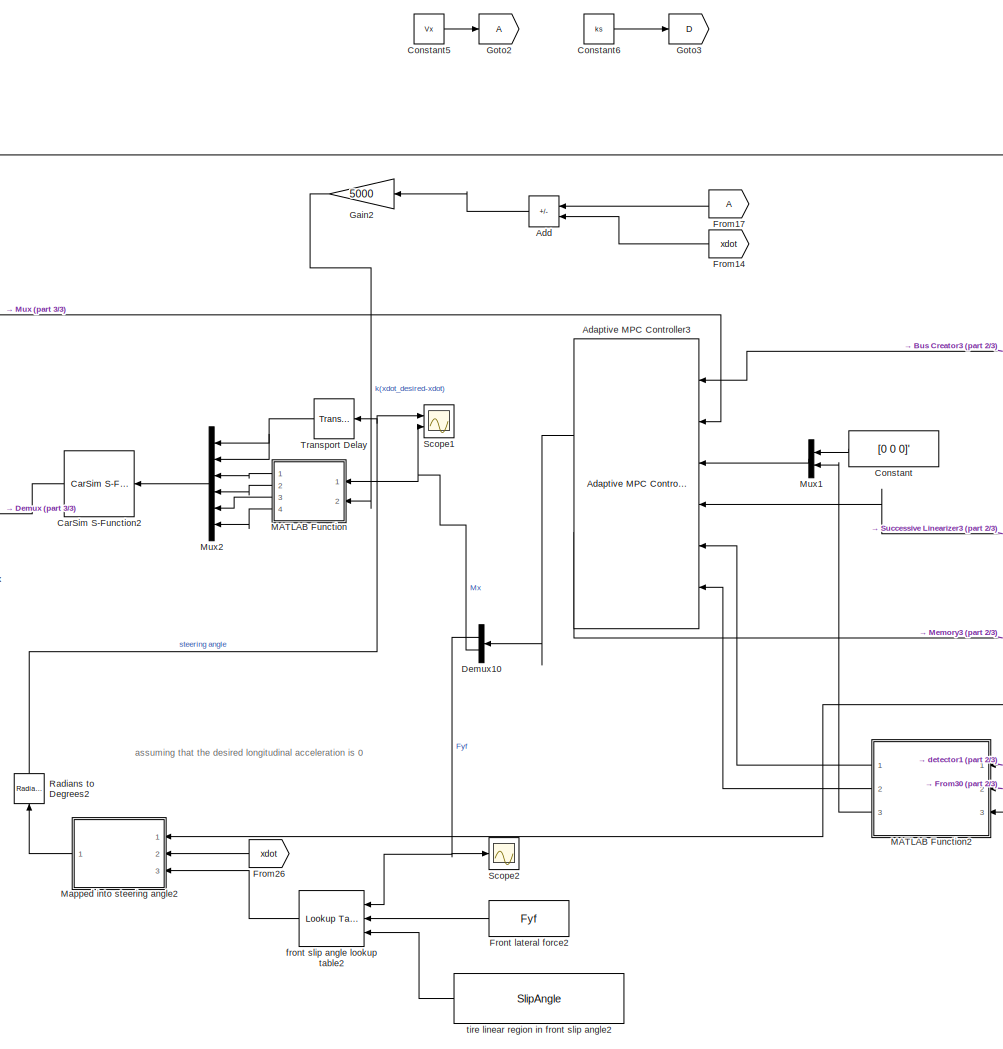
[diagram: root canvas - part 1/3, center side, full height]
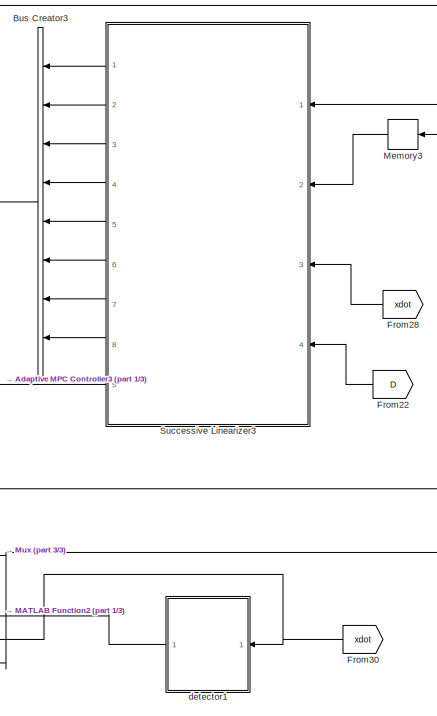
[diagram: root canvas - part 2/3, middle right region]
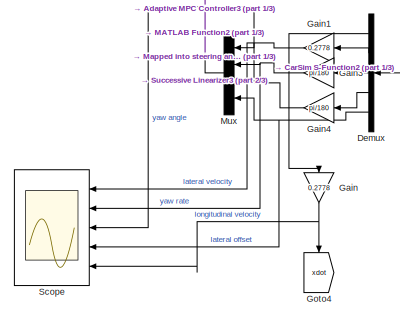
[diagram: root canvas - part 3/3, middle left region]
MODEL slx_ea054cab4434
KIND model
CONFIG AbsTol = auto
CONFIG EnableMultiTasking = off
CONFIG FixedStep = auto
CONFIG MaxStep = auto
CONFIG MinStep = auto
CONFIG RelTol = 1e-2
CONFIG SampleTimeConstraint = Unconstrained
CONFIG SolverName = VariableStepAuto
CONFIG StartTime = 0.0
CONFIG StopTime = 20
BLOCK [Reference] Adaptive MPC Controller3  REF=mpclib/Adaptive MPC Controller  (lib defined in mdl_ae329e0e0455)
  Ports = [6, 2]
  SCDEnableBlockLinearizationSpecification = on
  SourceBlock = mpclib/Adaptive MPC Controller
  SourceProductBaseCode = MP
  SourceType = Adaptive MPC
BLOCK [Sum] Add
  IconShape = rectangular
  Inputs = +-
  Ports = [2, 1]
BLOCK [BusCreator] Bus Creator3
  DisplayOption = bar
  InheritFromInputs = on
  Inputs = 8
  Ports = [8, 1]
BLOCK [Reference] CarSim S-Function2  REF=Solver_SF/CarSim S-Function2
  AttributesFormatString = Vehicle Code: %<VehicleCode>
  Ports = [1, 1]
  Priority = 1
  SourceBlock = Solver_SF/CarSim S-Function2
  SourceType = Vehicle math model library
BLOCK [Constant] Constant
  Value = [0 0 0]'
BLOCK [Constant] Constant5
  Value = Vx
BLOCK [Constant] Constant6
  Value = ks
BLOCK [Demux] Demux
  Outputs = 5
  Ports = [1, 5]
BLOCK [Demux] Demux10
  Outputs = 2
  Ports = [1, 2]
BLOCK [From] From14
  GotoTag = xdot
BLOCK [From] From17
BLOCK [From] From22
  GotoTag = D
BLOCK [From] From26
  GotoTag = xdot
BLOCK [From] From28
  GotoTag = xdot
BLOCK [From] From30
  GotoTag = xdot
BLOCK [Constant] Front lateral force2
  Value = Fyf
BLOCK [Gain] Gain
  Gain = 0.2778
  NameLocation = left
BLOCK [Gain] Gain1
  Gain = 0.2778
  NameLocation = top
BLOCK [Gain] Gain2
  Gain = 5000
BLOCK [Gain] Gain3
  Gain = pi/180
BLOCK [Gain] Gain4
  Gain = pi/180
BLOCK [Goto] Goto2
BLOCK [Goto] Goto3
  GotoTag = D
BLOCK [Goto] Goto4
  GotoTag = xdot
  NameLocation = left
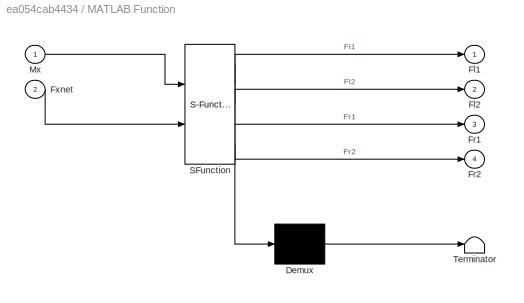
BLOCK [SubSystem] MATLAB Function
  ErrorFcn = Stateflow.Translate.translate
  PermitHierarchicalResolution = ExplicitOnly
  Ports = [2, 4]
  RequestExecContextInheritance = off
  SFBlockType = MATLAB Function
  TreatAsAtomicUnit = on
BLOCK [Demux] MATLAB Function/ Demux 
  Outputs = 1
  Ports = [1, 1]
BLOCK [S-Function] MATLAB Function/ SFunction 
  EnableBusSupport = on
  FunctionName = sf_sfun
  PortCounts = [2 5]
  Ports = [2, 5]
  SFcnIsStateOwnerBlock = off
  SFunctionDeploymentMode = off
  Tag = Stateflow S-Function 16
BLOCK [Terminator] MATLAB Function/ Terminator 
BLOCK [Outport] MATLAB Function/Fl1
BLOCK [Outport] MATLAB Function/Fl2
  Port = 2
BLOCK [Outport] MATLAB Function/Fr1
  Port = 3
BLOCK [Outport] MATLAB Function/Fr2
  Port = 4
BLOCK [Inport] MATLAB Function/Fxnet
  Port = 2
BLOCK [Inport] MATLAB Function/Mx
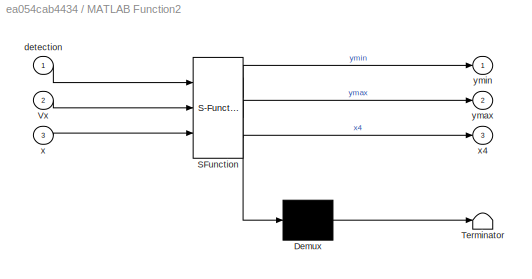
BLOCK [SubSystem] MATLAB Function2
  ErrorFcn = Stateflow.Translate.translate
  PermitHierarchicalResolution = ExplicitOnly
  Ports = [3, 3]
  RequestExecContextInheritance = off
  SFBlockType = MATLAB Function
  TreatAsAtomicUnit = on
BLOCK [Demux] MATLAB Function2/ Demux 
  Outputs = 1
  Ports = [1, 1]
BLOCK [S-Function] MATLAB Function2/ SFunction 
  EnableBusSupport = on
  FunctionName = sf_sfun
  PortCounts = [3 4]
  Ports = [3, 4]
  SFcnIsStateOwnerBlock = off
  SFunctionDeploymentMode = off
  Tag = Stateflow S-Function 2
BLOCK [Terminator] MATLAB Function2/ Terminator 
BLOCK [Inport] MATLAB Function2/Vx
  Port = 2
BLOCK [Inport] MATLAB Function2/detection
BLOCK [Inport] MATLAB Function2/x
  Port = 3
BLOCK [Outport] MATLAB Function2/x4
  Port = 3
BLOCK [Outport] MATLAB Function2/ymax
  Port = 2
BLOCK [Outport] MATLAB Function2/ymin
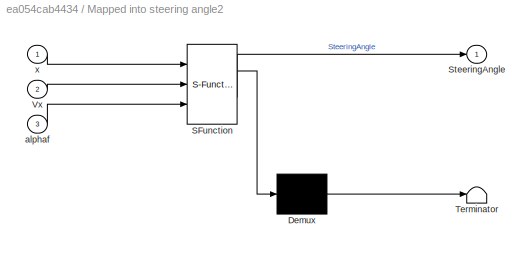
BLOCK [SubSystem] Mapped into steering angle2
  ErrorFcn = Stateflow.Translate.translate
  PermitHierarchicalResolution = ExplicitOnly
  Ports = [3, 1]
  RequestExecContextInheritance = off
  SFBlockType = MATLAB Function
  TreatAsAtomicUnit = on
BLOCK [Demux] Mapped into steering angle2/ Demux 
  Outputs = 1
  Ports = [1, 1]
BLOCK [S-Function] Mapped into steering angle2/ SFunction 
  EnableBusSupport = on
  FunctionName = sf_sfun
  PortCounts = [3 2]
  Ports = [3, 2]
  SFcnIsStateOwnerBlock = off
  SFunctionDeploymentMode = off
  Tag = Stateflow S-Function 13
BLOCK [Terminator] Mapped into steering angle2/ Terminator 
BLOCK [Outport] Mapped into steering angle2/SteeringAngle
BLOCK [Inport] Mapped into steering angle2/Vx
  Port = 2
BLOCK [Inport] Mapped into steering angle2/alphaf
  Port = 3
BLOCK [Inport] Mapped into steering angle2/x
BLOCK [Memory] Memory3
BLOCK [Mux] Mux
  DisplayOption = bar
  Ports = [4, 1]
BLOCK [Mux] Mux1
  DisplayOption = bar
  Inputs = 2
  Ports = [2, 1]
BLOCK [Mux] Mux2
  DisplayOption = bar
  Inputs = 6
  Ports = [6, 1]
BLOCK [Reference] Radians to Degrees2  REF=simulink_extras/Transformations/Radians
to Degrees
  NameLocation = left
  Ports = [1, 1]
  SourceBlock = simulink_extras/Transformations/Radians\nto Degrees
  SourceProductBaseCode = SL
  SourceType = RadiansToDegrees
BLOCK [Scope] Scope
  Floating = off
  NumInputPorts = 5
  Ports = [5]
  ScopeSpecificationString = Simulink.scopes.TimeScopeBlockCfg('CurrentConfiguration', extmgr.ConfigurationSet(extmgr.Configuration('Core','General UI',true),extmgr.Configuration('Core','Source UI',true),extmgr.Configuration('Sources','WiredSimulink',true,'DataLoggingVariableName','ScopeData1'),extmgr.Configuration('Visuals','Time Domain',true,'SerializedDisplays',{struct('MinYLimReal','-0.50924','MaxYLimReal','0.47855','YLab...<+4826ch>
BLOCK [Scope] Scope1
  Floating = off
  NumInputPorts = 2
  Ports = [2]
  ScopeSpecificationString = Simulink.scopes.TimeScopeBlockCfg('CurrentConfiguration', extmgr.ConfigurationSet(extmgr.Configuration('Core','General UI',true),extmgr.Configuration('Core','Source UI',true),extmgr.Configuration('Sources','WiredSimulink',true,'DataLoggingVariableName','ScopeData2'),extmgr.Configuration('Visuals','Time Domain',true,'SerializedDisplays',{struct('MinYLimReal','-9.78875','MaxYLimReal','9.28435','YLab...<+2051ch>
BLOCK [Scope] Scope2
  Floating = off
  NumInputPorts = 1
  Ports = [1]
  ScopeSpecificationString = Simulink.scopes.TimeScopeBlockCfg('CurrentConfiguration', extmgr.ConfigurationSet(extmgr.Configuration('Core','General UI',true),extmgr.Configuration('Core','Source UI',true),extmgr.Configuration('Sources','WiredSimulink',true,'DataLoggingVariableName','ScopeData1'),extmgr.Configuration('Visuals','Time Domain',true,'SerializedDisplays',{struct('MinYLimReal','-11062.39515','MaxYLimReal','12073.7571...<+1425ch>
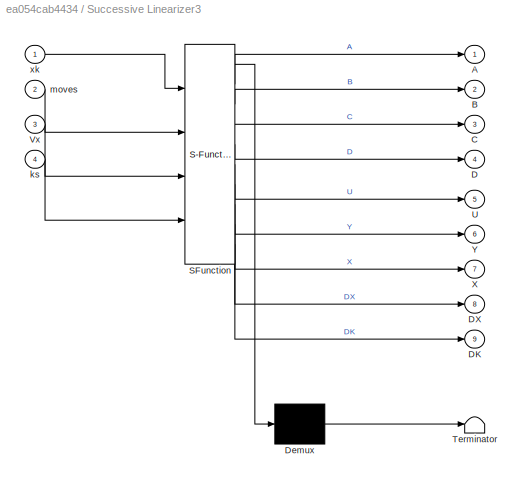
BLOCK [SubSystem] Successive Linearizer3
  ErrorFcn = Stateflow.Translate.translate
  PermitHierarchicalResolution = ExplicitOnly
  Ports = [4, 9]
  RequestExecContextInheritance = off
  SFBlockType = MATLAB Function
  TreatAsAtomicUnit = on
BLOCK [Demux] Successive Linearizer3/ Demux 
  Outputs = 1
  Ports = [1, 1]
BLOCK [S-Function] Successive Linearizer3/ SFunction 
  EnableBusSupport = on
  FunctionName = sf_sfun
  Parameters = PredictionHorizon,Ts
  PortCounts = [4 10]
  Ports = [4, 10]
  SFcnIsStateOwnerBlock = off
  SFunctionDeploymentMode = off
  Tag = Stateflow S-Function 14
BLOCK [Terminator] Successive Linearizer3/ Terminator 
BLOCK [Outport] Successive Linearizer3/A
BLOCK [Outport] Successive Linearizer3/B
  Port = 2
BLOCK [Outport] Successive Linearizer3/C
  Port = 3
BLOCK [Outport] Successive Linearizer3/D
  Port = 4
BLOCK [Outport] Successive Linearizer3/DK
  Port = 9
BLOCK [Outport] Successive Linearizer3/DX
  Port = 8
BLOCK [Outport] Successive Linearizer3/U
  Port = 5
BLOCK [Inport] Successive Linearizer3/Vx
  Port = 3
BLOCK [Outport] Successive Linearizer3/X
  Port = 7
BLOCK [Outport] Successive Linearizer3/Y
  Port = 6
BLOCK [Inport] Successive Linearizer3/ks
  Port = 4
BLOCK [Inport] Successive Linearizer3/moves
  Port = 2
BLOCK [Inport] Successive Linearizer3/xk
BLOCK [TransportDelay] Transport Delay
  DelayTime = Ts
  Ports = [1, 1]
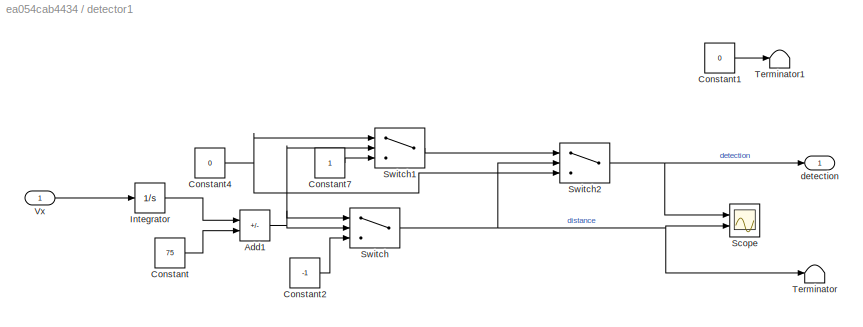
BLOCK [SubSystem] detector1
  Ports = [1, 1]
  RequestExecContextInheritance = off
BLOCK [Sum] detector1/Add1
  IconShape = rectangular
  Inputs = -+
  Ports = [2, 1]
BLOCK [Constant] detector1/Constant
  Value = 75
BLOCK [Constant] detector1/Constant1
  Value = 0
BLOCK [Constant] detector1/Constant2
  Value = -1
BLOCK [Constant] detector1/Constant4
  Value = 0
BLOCK [Constant] detector1/Constant7
BLOCK [Integrator] detector1/Integrator
  Ports = [1, 1]
BLOCK [Scope] detector1/Scope
  Floating = off
  NumInputPorts = 2
  Ports = [2]
  ScopeSpecificationString = Simulink.scopes.TimeScopeBlockCfg('CurrentConfiguration', extmgr.ConfigurationSet(extmgr.Configuration('Core','General UI',true),extmgr.Configuration('Core','Source UI',true),extmgr.Configuration('Sources','WiredSimulink',true),extmgr.Configuration('Visuals','Time Domain',true,'SerializedDisplays',{struct('MinYLimReal','-0.125','MaxYLimReal','1.125','YLabelReal','','MinYLimMag','0.00000','MaxYLimM...<+1985ch>
BLOCK [Switch] detector1/Switch
  Criteria = u2 > Threshold
  InputSameDT = off
  SaturateOnIntegerOverflow = off
BLOCK [Switch] detector1/Switch1
  Criteria = u2 > Threshold
  InputSameDT = off
  SaturateOnIntegerOverflow = off
  Threshold = 50
BLOCK [Switch] detector1/Switch2
  Criteria = u2 > Threshold
  InputSameDT = off
  SaturateOnIntegerOverflow = off
BLOCK [Terminator] detector1/Terminator
BLOCK [Terminator] detector1/Terminator1
BLOCK [Inport] detector1/Vx
BLOCK [Outport] detector1/detection
BLOCK [Reference] front slip angle lookup table2  REF=simulink/Lookup
Tables/Lookup
Table
Dynamic
  Ports = [3, 1]
  SourceBlock = simulink/Lookup\nTables/Lookup\nTable\nDynamic
  SourceProductBaseCode = SL
  SourceType = Lookup Table Dynamic
BLOCK [Constant] tire linear region in front slip angle2
  Value = SlipAngle
ANNOTATION (root): assuming that the desired longitudinal acceleration is 0
LINE Adaptive MPC Controller3:1 -> Demux10:1
LINE Adaptive MPC Controller3:2 -> Memory3:1
LINE Add:1 -> Gain2:1
LINE Bus Creator3:1 -> Adaptive MPC Controller3:1
LINE CarSim S-Function2:1 -> Demux:1
LINE Constant5:1 -> Goto2:1
LINE Constant6:1 -> Goto3:1
LINE Constant:1 -> Mux1:1
NET Demux10:1 -> Scope2:1, front slip angle lookup table2:1
NET Demux10:2 -> MATLAB Function:1, Scope1:2
LINE Demux:1 -> Gain:1
LINE Demux:2 -> Gain1:1
LINE Demux:3 -> Gain3:1
LINE Demux:4 -> Gain4:1
NET Demux:5 -> Mux:4, Scope:4
LINE From14:1 -> Add:2
LINE From17:1 -> Add:1
LINE From22:1 -> Successive Linearizer3:4
LINE From26:1 -> Mapped into steering angle2:2
LINE From28:1 -> Successive Linearizer3:3
NET From30:1 -> MATLAB Function2:2, detector1:1
LINE Front lateral force2:1 -> front slip angle lookup table2:2
NET Gain1:1 -> Mux:1, Scope:1
LINE Gain2:1 -> MATLAB Function:2
NET Gain3:1 -> Mux:2, Scope:2
NET Gain4:1 -> Mux:3, Scope:3
NET Gain:1 -> Goto4:1, Scope:5
LINE MATLAB Function2:1 -> Adaptive MPC Controller3:5
LINE MATLAB Function2:2 -> Adaptive MPC Controller3:6
LINE MATLAB Function2:3 -> Mux1:2
LINE MATLAB Function:1 -> Mux2:3
LINE MATLAB Function:2 -> Mux2:4
LINE MATLAB Function:3 -> Mux2:5
LINE MATLAB Function:4 -> Mux2:6
LINE Mapped into steering angle2:1 -> Radians to Degrees2:1
LINE Memory3:1 -> Successive Linearizer3:2
LINE Mux1:1 -> Adaptive MPC Controller3:3
LINE Mux2:1 -> CarSim S-Function2:1
NET Mux:1 -> Adaptive MPC Controller3:2, MATLAB Function2:3, Mapped into steering angle2:1, Successive Linearizer3:1
NET Radians to Degrees2:1 -> Scope1:1, Transport Delay:1
LINE Successive Linearizer3:1 -> Bus Creator3:1
LINE Successive Linearizer3:2 -> Bus Creator3:2
LINE Successive Linearizer3:3 -> Bus Creator3:3
LINE Successive Linearizer3:4 -> Bus Creator3:4
LINE Successive Linearizer3:5 -> Bus Creator3:5
LINE Successive Linearizer3:6 -> Bus Creator3:6
LINE Successive Linearizer3:7 -> Bus Creator3:7
LINE Successive Linearizer3:8 -> Bus Creator3:8
LINE Successive Linearizer3:9 -> Adaptive MPC Controller3:4
NET Transport Delay:1 -> Mux2:1, Mux2:2
NET detector1/Add1:1 -> detector1/Switch1:2, detector1/Switch:1, detector1/Switch:2
LINE detector1/Constant1:1 -> detector1/Terminator1:1
LINE detector1/Constant2:1 -> detector1/Switch:3
NET detector1/Constant4:1 -> detector1/Switch1:1, detector1/Switch2:3
LINE detector1/Constant7:1 -> detector1/Switch1:3
LINE detector1/Constant:1 -> detector1/Add1:2
LINE detector1/Integrator:1 -> detector1/Add1:1
LINE detector1/Switch1:1 -> detector1/Switch2:1
NET detector1/Switch2:1 -> detector1/Scope:1, detector1/detection:1
NET detector1/Switch:1 -> detector1/Scope:2, detector1/Switch2:2, detector1/Terminator:1
LINE detector1/Vx:1 -> detector1/Integrator:1
LINE detector1:1 -> MATLAB Function2:1
LINE front slip angle lookup table2:1 -> Mapped into steering angle2:3
LINE tire linear region in front slip angle2:1 -> front slip angle lookup table2:3
note: NET lines group one-source signal fan-out (src -> all destinations, sorted); 1:1 wires keep LINE
CHART MATLAB Function2 states=1 transitions=1
  STATE_LABEL 'eML_blk_kernel()'
  STATE_LABEL 'SCRIPT:\nfunction [ymin,ymax,x4] = fcn(detection,Vx,x)\n\nmiu = 0.7; %frction cooeficient 0.7 for dry road and 0.4 for wet\ng = 9.81; % gravity\nm = 2272;   %mass\nlf = 1.11;  % distance from front axle to the mass center\nlr = 1.67;  % distance from rear axle to the mass center\nC_a = 1.822e5; % rear cornering stifness\n\nFz = m*g*lf/(lf+lr)/2; % the load that beared by the rear tire\n\nrmax = g*miu/Vx; %max...<+390ch>'
CHART Mapped into steering angle2 states=1 transitions=1
  STATE_LABEL 'eML_blk_kernel()'
  STATE_LABEL 'SCRIPT:\nfunction SteeringAngle = fcn(x,Vx, alphaf)\n\nlf = 1.11;  % distance from front axle to the mass center\n\nVy = x(1); %lateral velocity\nr = x(2);  %yaw rate\nSteeringAngle = Vy/Vx+lf*r/Vx-alphaf;\n\n'
CHART Successive Linearizer3 states=1 transitions=1
  STATE_LABEL 'eML_blk_kernel()'
  STATE_LABEL 'SCRIPT:\nfunction [A,B,C,D,U,Y,X,DX,DK] = fcn(xk,moves,Vx,ks, PredictionHorizon, Ts)\n%sucessive updates the LTI plant model required by adaptive MPC controller\n\n% LTV MPC requires p+1 linearizations from k to k+p\nSteps = PredictionHorizon + 1; % having the number of Steps models\n% Initialize outputs\nA = zeros(4,4,Steps);\nB = zeros(4,6,Steps);\nC = zeros(4,4,Steps);\nD = zeros(4,6,Steps);\nU = zeros(6,...<+1699ch>'
CHART MATLAB Function states=1 transitions=1
  STATE_LABEL 'eML_blk_kernel()'
  STATE_LABEL 'SCRIPT:\nfunction [Fl1,Fl2,Fr1,Fr2] = fcn(Mx,Fxnet)\n\nw = 1.875; % the width of the car\n\nFwf = zeros(2,1);\nFwr = zeros(2,1);\n\nif Mx > 0\n    Fwf(1) = Fxnet/2+0;\n    Fwf(2) = Fxnet/2-Mx/w;\n    Fwr(1) = 0;\n    Fwr(2) = -Mx/w;\nelseif Mx < 0\n    Fwf(1) = Fxnet/2+Mx/w;\n    Fwf(2) = Fxnet/2+0;\n    Fwr(1) = Mx/w;\n    Fwr(2) = 0;\nelse\n    Fwf(1) = Fxnet/2+0;\n    Fwf(2) = Fxnet/2+0;\n    Fwr(1) = 0;\n    Fwr(2)...<+66ch>'
CHART  states=0 transitions=0
CHART  states=0 transitions=0
CHART  states=0 transitions=0
CHART  states=0 transitions=0
